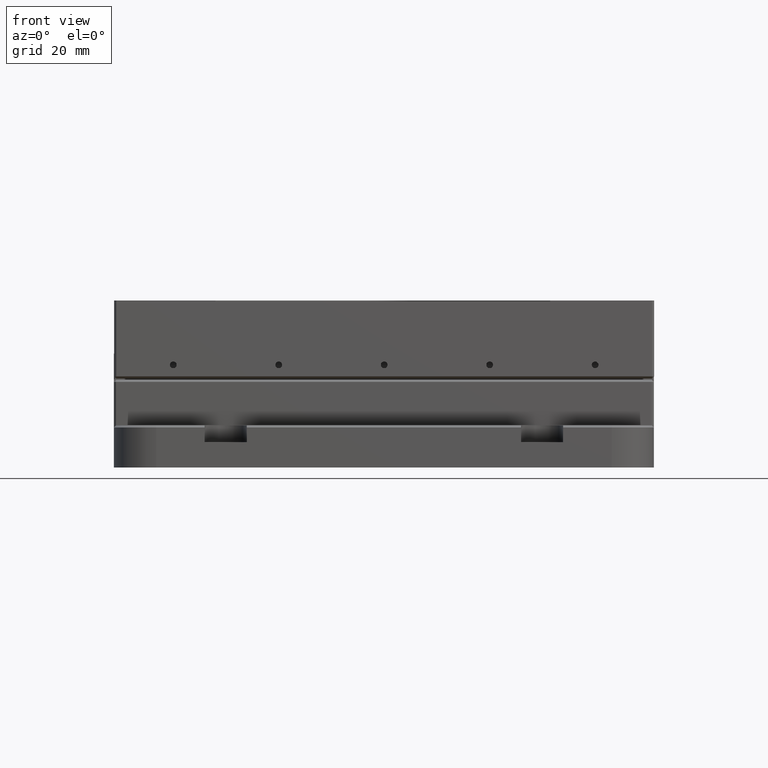
[diagram: clean part render]
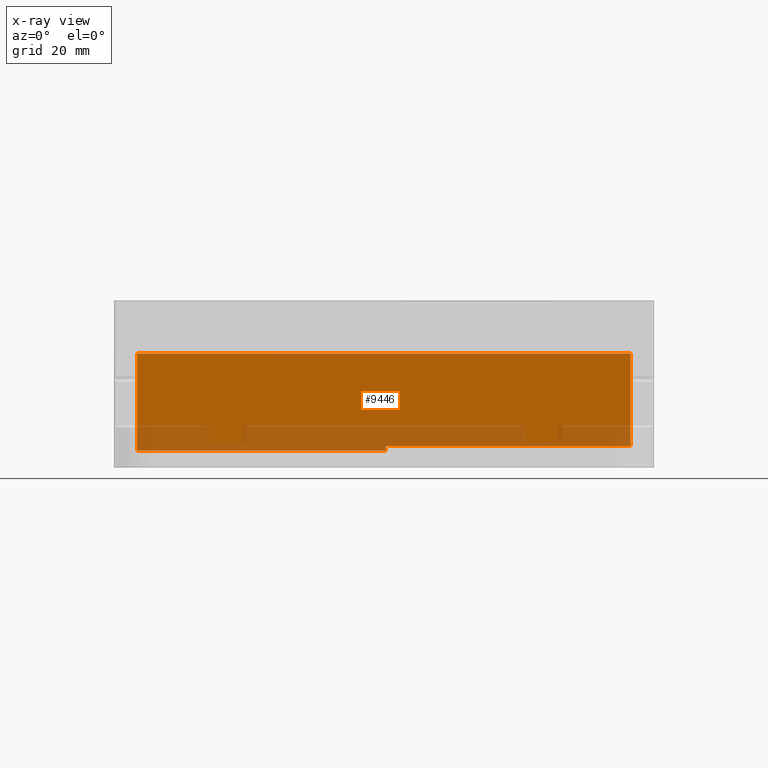
[diagram: x-ray — body ghosted, one internal face saturated and labeled with its STEP entity id]
A machine part, front view, then the same camera in x-ray: the body is ghosted and one INTERNAL B-rep face — a face not visible from any outside direction — is saturated and labeled: STEP entity #9446.
In plain terms, the highlighted planar face has unit normal (0, -1, 0).
Its self-contained STEP definition (entity closure, byte-faithful):
#513 = CARTESIAN_POINT ( 'NONE',  ( 36.39232537422616787, -36.84936401684885254, 74.80000005662441254 ) ) ;
#2814 = VERTEX_POINT ( 'NONE', #46702 ) ;
#3643 = LINE ( 'NONE', #71839, #9888 ) ;
#4107 = CARTESIAN_POINT ( 'NONE',  ( 36.39232537422616787, -36.84936401684885254, 96.80000005662442675 ) ) ;
#5708 = VERTEX_POINT ( 'NONE', #41537 ) ;
#7055 = VERTEX_POINT ( 'NONE', #4107 ) ;
#7172 = EDGE_CURVE ( 'NONE', #2814, #14779, #55885, .T. ) ;
#7635 = ORIENTED_EDGE ( 'NONE', *, *, #32632, .T. ) ;
#9446 = ADVANCED_FACE ( 'NONE', ( #72385 ), #51596, .F. ) ;
#9888 = VECTOR ( 'NONE', #64629, 1000.000000000000000 ) ;
#10352 = AXIS2_PLACEMENT_3D ( 'NONE', #88955, #40177, #19832 ) ;
#14779 = VERTEX_POINT ( 'NONE', #50242 ) ;
#18451 = LINE ( 'NONE', #46435, #68393 ) ;
#19805 = CARTESIAN_POINT ( 'NONE',  ( 33.39232537422616787, -36.84936401684885254, 73.80000005662441254 ) ) ;
#19832 = DIRECTION ( 'NONE',  ( 0.000000000000000000, -0.000000000000000000, -1.000000000000000000 ) ) ;
#22374 = CARTESIAN_POINT ( 'NONE',  ( 153.3923253742261466, -36.84936401684885254, 96.80000005662442675 ) ) ;
#26982 = CARTESIAN_POINT ( 'NONE',  ( 153.3923253742261466, -36.84936401684885254, 74.80000005662441254 ) ) ;
#30769 = VERTEX_POINT ( 'NONE', #22374 ) ;
#32407 = ORIENTED_EDGE ( 'NONE', *, *, #60486, .F. ) ;
#32632 = EDGE_CURVE ( 'NONE', #5708, #7055, #77298, .T. ) ;
#33899 = CARTESIAN_POINT ( 'NONE',  ( 33.39232537422616787, -36.84936401684885254, 74.80000005662441254 ) ) ;
#40177 = DIRECTION ( 'NONE',  ( 0.000000000000000000, -1.000000000000000000, 0.000000000000000000 ) ) ;
#41537 = CARTESIAN_POINT ( 'NONE',  ( 36.39232537422616787, -36.84936401684885254, 73.80000005662441254 ) ) ;
#42047 = ORIENTED_EDGE ( 'NONE', *, *, #80257, .F. ) ;
#45041 = ORIENTED_EDGE ( 'NONE', *, *, #7172, .T. ) ;
#46435 = CARTESIAN_POINT ( 'NONE',  ( 153.3923253742261466, -36.84936401684885254, 74.80000005662441254 ) ) ;
#46702 = CARTESIAN_POINT ( 'NONE',  ( 95.39232537422617497, -36.84936401684885254, 74.80000005662441254 ) ) ;
#47773 = CARTESIAN_POINT ( 'NONE',  ( 95.39232537422617497, -36.84936401684885254, 73.80000005662441254 ) ) ;
#48159 = ORIENTED_EDGE ( 'NONE', *, *, #54187, .F. ) ;
#50131 = VECTOR ( 'NONE', #69003, 1000.000000000000000 ) ;
#50242 = CARTESIAN_POINT ( 'NONE',  ( 95.39232537422617497, -36.84936401684885254, 73.80000005662441254 ) ) ;
#51596 = PLANE ( 'NONE',  #10352 ) ;
#52078 = VERTEX_POINT ( 'NONE', #26982 ) ;
#53756 = DIRECTION ( 'NONE',  ( 1.000000000000000000, 0.000000000000000000, 0.000000000000000000 ) ) ;
#54187 = EDGE_CURVE ( 'NONE', #2814, #52078, #87217, .T. ) ;
#55885 = LINE ( 'NONE', #47773, #50131 ) ;
#56603 = VECTOR ( 'NONE', #75389, 1000.000000000000000 ) ;
#60434 = DIRECTION ( 'NONE',  ( -0.000000000000000000, 0.000000000000000000, 1.000000000000000000 ) ) ;
#60486 = EDGE_CURVE ( 'NONE', #30769, #7055, #3643, .T. ) ;
#63181 = VECTOR ( 'NONE', #76416, 1000.000000000000000 ) ;
#64629 = DIRECTION ( 'NONE',  ( -1.000000000000000000, -0.000000000000000000, -0.000000000000000000 ) ) ;
#67130 = EDGE_LOOP ( 'NONE', ( #42047, #7635, #32407, #68085, #48159, #45041 ) ) ;
#68085 = ORIENTED_EDGE ( 'NONE', *, *, #83728, .F. ) ;
#68393 = VECTOR ( 'NONE', #60434, 1000.000000000000000 ) ;
#69003 = DIRECTION ( 'NONE',  ( -0.000000000000000000, -0.000000000000000000, -1.000000000000000000 ) ) ;
#71839 = CARTESIAN_POINT ( 'NONE',  ( 94.89232537422614655, -36.84936401684885254, 96.80000005662442675 ) ) ;
#72385 = FACE_OUTER_BOUND ( 'NONE', #67130, .T. ) ;
#74464 = LINE ( 'NONE', #19805, #56603 ) ;
#75389 = DIRECTION ( 'NONE',  ( 1.000000000000000000, 0.000000000000000000, 0.000000000000000000 ) ) ;
#76416 = DIRECTION ( 'NONE',  ( -0.000000000000000000, -0.000000000000000000, 1.000000000000000000 ) ) ;
#77298 = LINE ( 'NONE', #513, #63181 ) ;
#80257 = EDGE_CURVE ( 'NONE', #5708, #14779, #74464, .T. ) ;
#83728 = EDGE_CURVE ( 'NONE', #52078, #30769, #18451, .T. ) ;
#87217 = LINE ( 'NONE', #33899, #88674 ) ;
#88674 = VECTOR ( 'NONE', #53756, 1000.000000000000000 ) ;
#88955 = CARTESIAN_POINT ( 'NONE',  ( 33.39232537422616787, -36.84936401684885254, 74.80000005662441254 ) ) ;